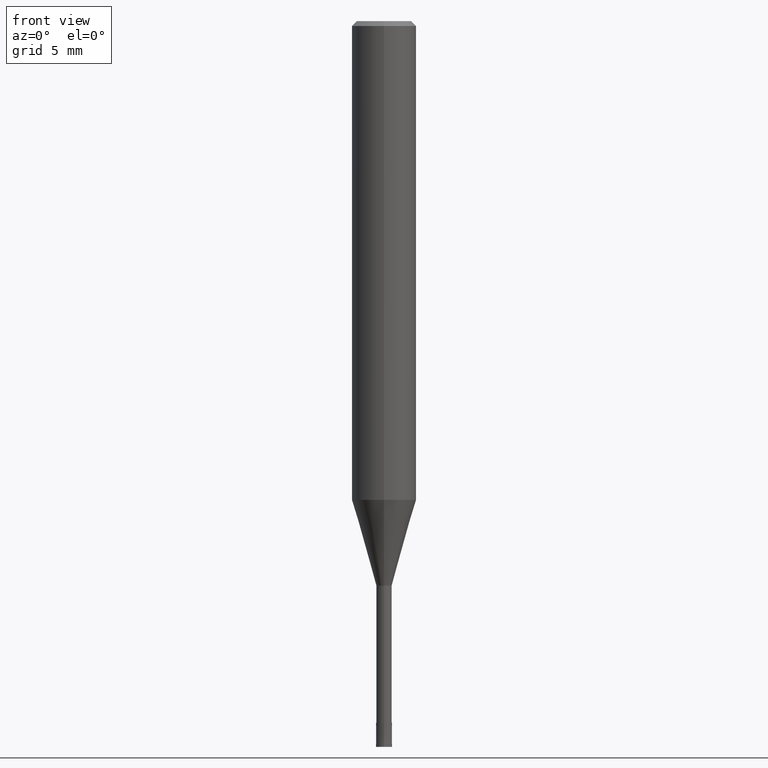
[diagram: clean part render]
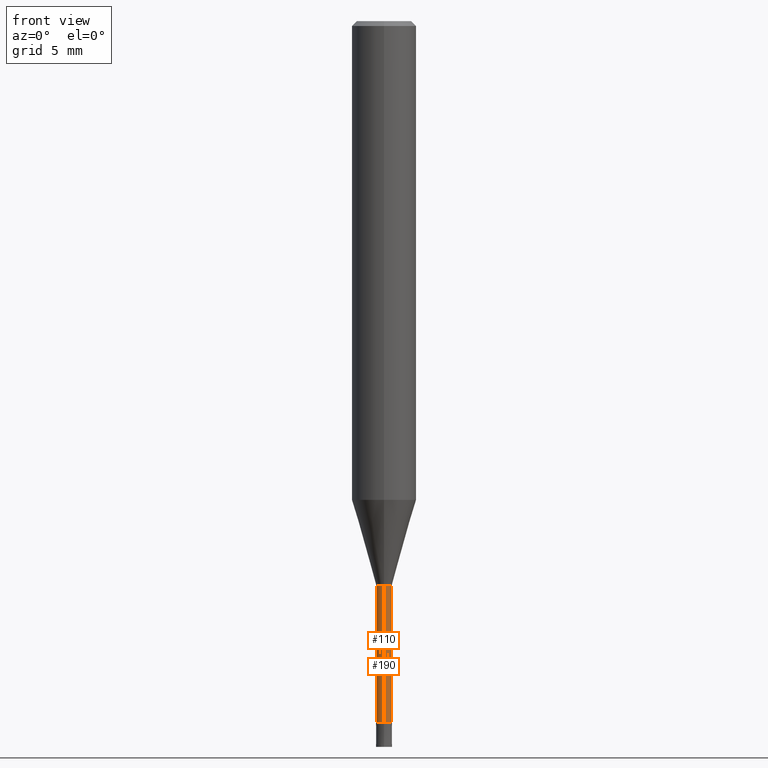
[diagram: same view with one multi-face feature highlighted, each face labeled with its STEP entity id]
A machine part, front view. The highlighted faces form ONE feature: a constant-radius fillet chain: 2 tangent blend faces with common blend radius 0.4749 mm. The faces share edges in the B-rep.
Their STEP definitions:
[1] entity #110 (Cylinder):
#94=VERTEX_POINT('',#231);
#108=VERTEX_POINT('',#245);
#110=ADVANCED_FACE('',(#247),#248,.T.);
#118=EDGE_CURVE('',#120,#144,#258,.T.);
#120=VERTEX_POINT('',#260);
#126=EDGE_CURVE('',#108,#144,#267,.T.);
#144=VERTEX_POINT('',#288);
#176=EDGE_CURVE('',#120,#94,#324,.T.);
#180=EDGE_CURVE('',#94,#108,#328,.T.);
#231=CARTESIAN_POINT('',(5.81626787747938E-017,-0.47495,-35.0));
#245=CARTESIAN_POINT('',(0.0,0.47495,-35.0));
#247=FACE_OUTER_BOUND('',#396,.T.);
#248=CYLINDRICAL_SURFACE('',#397,0.47495);
#258=CIRCLE('',#408,0.47495);
#260=CARTESIAN_POINT('',(5.81626787747938E-017,-0.47495,-43.5));
#267=LINE('',#419,#420);
#288=CARTESIAN_POINT('',(0.0,0.47495,-43.5));
#324=LINE('',#492,#493);
#328=CIRCLE('',#500,0.47495);
#396=EDGE_LOOP('',(#550,#551,#552,#553));
#397=AXIS2_PLACEMENT_3D('',#554,#555,#556);
#408=AXIS2_PLACEMENT_3D('',#565,#566,#567);
#419=CARTESIAN_POINT('',(-5.81626787747938E-017,0.47495,-39.25));
#420=VECTOR('',#579,1.0);
#492=CARTESIAN_POINT('',(5.81626787747938E-017,-0.47495,-39.25));
#493=VECTOR('',#660,1.0);
#500=AXIS2_PLACEMENT_3D('',#662,#663,#664);
#550=ORIENTED_EDGE('',*,*,#126,.T.);
#551=ORIENTED_EDGE('',*,*,#118,.F.);
#552=ORIENTED_EDGE('',*,*,#176,.T.);
#553=ORIENTED_EDGE('',*,*,#180,.T.);
#554=CARTESIAN_POINT('',(0.0,0.0,-39.25));
#555=DIRECTION('',(-0.0,-0.0,1.0));
#556=DIRECTION('',(0.0,1.0,0.0));
#565=CARTESIAN_POINT('',(0.0,0.0,-43.5));
#566=DIRECTION('',(0.0,0.0,-1.0));
#567=DIRECTION('',(0.0,1.0,0.0));
#579=DIRECTION('',(0.0,0.0,-1.0));
#660=DIRECTION('',(-0.0,-0.0,1.0));
#662=CARTESIAN_POINT('',(0.0,0.0,-35.0));
#663=DIRECTION('',(0.0,0.0,-1.0));
#664=DIRECTION('',(0.0,1.0,0.0));
[2] entity #190 (Cylinder):
#94=VERTEX_POINT('',#231);
#108=VERTEX_POINT('',#245);
#120=VERTEX_POINT('',#260);
#126=EDGE_CURVE('',#108,#144,#267,.T.);
#144=VERTEX_POINT('',#288);
#156=EDGE_CURVE('',#108,#94,#301,.T.);
#172=EDGE_CURVE('',#144,#120,#320,.T.);
#176=EDGE_CURVE('',#120,#94,#324,.T.);
#190=ADVANCED_FACE('',(#339),#340,.T.);
#231=CARTESIAN_POINT('',(5.81626787747938E-017,-0.47495,-35.0));
#245=CARTESIAN_POINT('',(0.0,0.47495,-35.0));
#260=CARTESIAN_POINT('',(5.81626787747938E-017,-0.47495,-43.5));
#267=LINE('',#419,#420);
#288=CARTESIAN_POINT('',(0.0,0.47495,-43.5));
#301=CIRCLE('',#462,0.47495);
#320=CIRCLE('',#485,0.47495);
#324=LINE('',#492,#493);
#339=FACE_OUTER_BOUND('',#516,.T.);
#340=CYLINDRICAL_SURFACE('',#517,0.47495);
#419=CARTESIAN_POINT('',(-5.81626787747938E-017,0.47495,-39.25));
#420=VECTOR('',#579,1.0);
#462=AXIS2_PLACEMENT_3D('',#625,#626,#627);
#485=AXIS2_PLACEMENT_3D('',#656,#657,#658);
#492=CARTESIAN_POINT('',(5.81626787747938E-017,-0.47495,-39.25));
#493=VECTOR('',#660,1.0);
#516=EDGE_LOOP('',(#677,#678,#679,#680));
#517=AXIS2_PLACEMENT_3D('',#681,#682,#683);
#579=DIRECTION('',(0.0,0.0,-1.0));
#625=CARTESIAN_POINT('',(0.0,0.0,-35.0));
#626=DIRECTION('',(0.0,0.0,-1.0));
#627=DIRECTION('',(0.0,1.0,0.0));
#656=CARTESIAN_POINT('',(0.0,0.0,-43.5));
#657=DIRECTION('',(0.0,0.0,-1.0));
#658=DIRECTION('',(0.0,1.0,0.0));
#660=DIRECTION('',(-0.0,-0.0,1.0));
#677=ORIENTED_EDGE('',*,*,#126,.F.);
#678=ORIENTED_EDGE('',*,*,#156,.T.);
#679=ORIENTED_EDGE('',*,*,#176,.F.);
#680=ORIENTED_EDGE('',*,*,#172,.F.);
#681=CARTESIAN_POINT('',(0.0,0.0,-39.25));
#682=DIRECTION('',(-0.0,-0.0,1.0));
#683=DIRECTION('',(0.0,1.0,0.0));